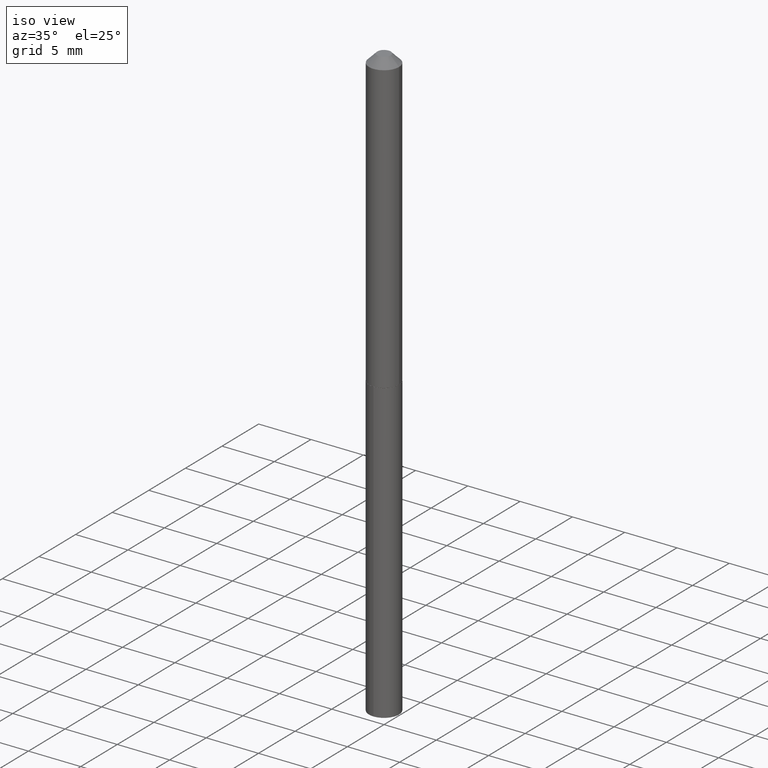
[diagram: clean part render]
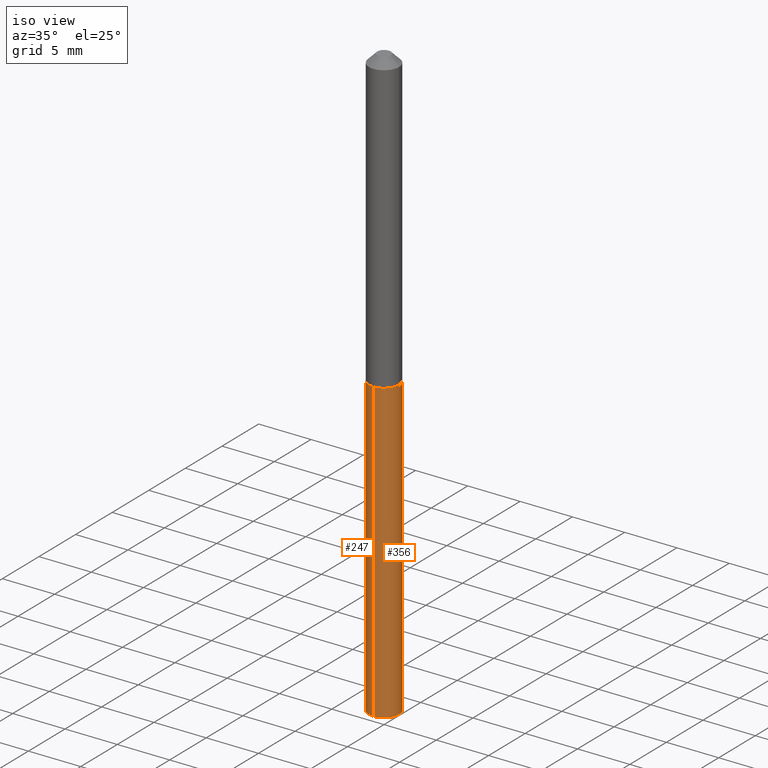
[diagram: same view with one multi-face feature highlighted, each face labeled with its STEP entity id]
A machine part, iso view. The highlighted faces form ONE feature: a constant-radius fillet chain: 2 tangent blend faces with common blend radius 1.4351 mm. The faces share edges in the B-rep.
Their STEP definitions:
[1] entity #247 (Cylinder):
#5 = DIRECTION ( 'NONE',  ( -2.446326922629203829E-29, 3.490252467254286211E-15, 1.000000000000000000 ) ) ;
#22 = ORIENTED_EDGE ( 'NONE', *, *, #91, .T. ) ;
#29 = CARTESIAN_POINT ( 'NONE',  ( 4.014566457045113930E-16, 0.05649999999999611583, -1.112999999999999767 ) ) ;
#38 = CARTESIAN_POINT ( 'NONE',  ( -3.945373912892193774E-16, -0.05650000000000780093, -2.234860870627641383 ) ) ;
#45 = CIRCLE ( 'NONE', #323, 0.05650000000000000161 ) ;
#71 = DIRECTION ( 'NONE',  ( -6.982962677686265922E-15, -1.000000000000000000, 4.835129192326129423E-15 ) ) ;
#81 = AXIS2_PLACEMENT_3D ( 'NONE', #200, #295, #288 ) ;
#91 = EDGE_CURVE ( 'NONE', #333, #103, #45, .T. ) ;
#96 = EDGE_CURVE ( 'NONE', #379, #163, #350, .T. ) ;
#103 = VERTEX_POINT ( 'NONE', #38 ) ;
#107 = ORIENTED_EDGE ( 'NONE', *, *, #96, .F. ) ;
#109 = CYLINDRICAL_SURFACE ( 'NONE', #81, 0.05650000000000000161 ) ;
#110 = ORIENTED_EDGE ( 'NONE', *, *, #361, .F. ) ;
#147 = LINE ( 'NONE', #204, #328 ) ;
#148 = VECTOR ( 'NONE', #5, 39.37007874015748143 ) ;
#152 = CARTESIAN_POINT ( 'NONE',  ( 5.466245232544695378E-29, -7.801596401756588387E-15, -2.234860870627641383 ) ) ;
#155 = EDGE_CURVE ( 'NONE', #103, #163, #312, .T. ) ;
#163 = VERTEX_POINT ( 'NONE', #184 ) ;
#184 = CARTESIAN_POINT ( 'NONE',  ( -3.945373912892467903E-16, -0.05650000000000388045, -1.112999999999999545 ) ) ;
#197 = CARTESIAN_POINT ( 'NONE',  ( 4.014566457045111958E-16, 0.05649999999999219535, -2.234860870627641827 ) ) ;
#200 = CARTESIAN_POINT ( 'NONE',  ( 2.721806781284056481E-29, -3.886018730132419983E-15, -1.112999999999999767 ) ) ;
#204 = CARTESIAN_POINT ( 'NONE',  ( 4.014566457044837829E-16, 0.05649999999999611583, -1.112999999999999767 ) ) ;
#210 = AXIS2_PLACEMENT_3D ( 'NONE', #221, #284, #368 ) ;
#221 = CARTESIAN_POINT ( 'NONE',  ( 2.721806781284056481E-29, -3.886018730132419983E-15, -1.112999999999999767 ) ) ;
#247 = ADVANCED_FACE ( 'NONE', ( #376 ), #109, .T. ) ;
#284 = DIRECTION ( 'NONE',  ( -2.446326922629204109E-29, 3.490252467254285817E-15, 1.000000000000000000 ) ) ;
#285 = ORIENTED_EDGE ( 'NONE', *, *, #155, .T. ) ;
#288 = DIRECTION ( 'NONE',  ( -6.982962677686265922E-15, -1.000000000000000000, 2.417564596163064711E-15 ) ) ;
#295 = DIRECTION ( 'NONE',  ( -2.446326922629204109E-29, 3.490252467254285817E-15, 1.000000000000000000 ) ) ;
#310 = DIRECTION ( 'NONE',  ( -2.446326922629204109E-29, 3.490252467254285817E-15, 1.000000000000000000 ) ) ;
#312 = LINE ( 'NONE', #334, #148 ) ;
#323 = AXIS2_PLACEMENT_3D ( 'NONE', #152, #310, #71 ) ;
#328 = VECTOR ( 'NONE', #360, 39.37007874015748143 ) ;
#333 = VERTEX_POINT ( 'NONE', #197 ) ;
#334 = CARTESIAN_POINT ( 'NONE',  ( -3.945373912892467903E-16, -0.05650000000000388045, -1.112999999999999545 ) ) ;
#350 = CIRCLE ( 'NONE', #210, 0.05650000000000000161 ) ;
#360 = DIRECTION ( 'NONE',  ( -2.446326922629203829E-29, 3.490252467254286211E-15, 1.000000000000000000 ) ) ;
#361 = EDGE_CURVE ( 'NONE', #333, #379, #147, .T. ) ;
#368 = DIRECTION ( 'NONE',  ( -6.982962677686265922E-15, -1.000000000000000000, 2.417564596163064711E-15 ) ) ;
#376 = FACE_OUTER_BOUND ( 'NONE', #387, .T. ) ;
#379 = VERTEX_POINT ( 'NONE', #29 ) ;
#387 = EDGE_LOOP ( 'NONE', ( #110, #22, #285, #107 ) ) ;
[2] entity #356 (Cylinder):
#5 = DIRECTION ( 'NONE',  ( -2.446326922629203829E-29, 3.490252467254286211E-15, 1.000000000000000000 ) ) ;
#24 = DIRECTION ( 'NONE',  ( -6.982962677686265922E-15, -1.000000000000000000, 4.835129192326129423E-15 ) ) ;
#29 = CARTESIAN_POINT ( 'NONE',  ( 4.014566457045113930E-16, 0.05649999999999611583, -1.112999999999999767 ) ) ;
#37 = ORIENTED_EDGE ( 'NONE', *, *, #361, .T. ) ;
#38 = CARTESIAN_POINT ( 'NONE',  ( -3.945373912892193774E-16, -0.05650000000000780093, -2.234860870627641383 ) ) ;
#58 = EDGE_CURVE ( 'NONE', #163, #379, #117, .T. ) ;
#79 = DIRECTION ( 'NONE',  ( -2.446326922629204109E-29, 3.490252467254285817E-15, 1.000000000000000000 ) ) ;
#82 = ORIENTED_EDGE ( 'NONE', *, *, #254, .T. ) ;
#94 = DIRECTION ( 'NONE',  ( -6.982962677686265922E-15, -1.000000000000000000, 2.417564596163064711E-15 ) ) ;
#103 = VERTEX_POINT ( 'NONE', #38 ) ;
#117 = CIRCLE ( 'NONE', #215, 0.05650000000000000161 ) ;
#147 = LINE ( 'NONE', #204, #328 ) ;
#148 = VECTOR ( 'NONE', #5, 39.37007874015748143 ) ;
#155 = EDGE_CURVE ( 'NONE', #103, #163, #312, .T. ) ;
#163 = VERTEX_POINT ( 'NONE', #184 ) ;
#176 = FACE_OUTER_BOUND ( 'NONE', #291, .T. ) ;
#177 = CYLINDRICAL_SURFACE ( 'NONE', #351, 0.05650000000000000161 ) ;
#184 = CARTESIAN_POINT ( 'NONE',  ( -3.945373912892467903E-16, -0.05650000000000388045, -1.112999999999999545 ) ) ;
#197 = CARTESIAN_POINT ( 'NONE',  ( 4.014566457045111958E-16, 0.05649999999999219535, -2.234860870627641827 ) ) ;
#202 = ORIENTED_EDGE ( 'NONE', *, *, #155, .F. ) ;
#204 = CARTESIAN_POINT ( 'NONE',  ( 4.014566457044837829E-16, 0.05649999999999611583, -1.112999999999999767 ) ) ;
#209 = DIRECTION ( 'NONE',  ( -6.982962677686265922E-15, -1.000000000000000000, 2.417564596163064711E-15 ) ) ;
#215 = AXIS2_PLACEMENT_3D ( 'NONE', #244, #276, #94 ) ;
#222 = ORIENTED_EDGE ( 'NONE', *, *, #58, .F. ) ;
#244 = CARTESIAN_POINT ( 'NONE',  ( 2.721806781284056481E-29, -3.886018730132419983E-15, -1.112999999999999767 ) ) ;
#254 = EDGE_CURVE ( 'NONE', #103, #333, #316, .T. ) ;
#276 = DIRECTION ( 'NONE',  ( -2.446326922629204109E-29, 3.490252467254285817E-15, 1.000000000000000000 ) ) ;
#286 = CARTESIAN_POINT ( 'NONE',  ( 5.466245232544695378E-29, -7.801596401756588387E-15, -2.234860870627641383 ) ) ;
#291 = EDGE_LOOP ( 'NONE', ( #82, #37, #222, #202 ) ) ;
#300 = CARTESIAN_POINT ( 'NONE',  ( 2.721806781284056481E-29, -3.886018730132419983E-15, -1.112999999999999767 ) ) ;
#312 = LINE ( 'NONE', #334, #148 ) ;
#316 = CIRCLE ( 'NONE', #344, 0.05650000000000000161 ) ;
#328 = VECTOR ( 'NONE', #360, 39.37007874015748143 ) ;
#333 = VERTEX_POINT ( 'NONE', #197 ) ;
#334 = CARTESIAN_POINT ( 'NONE',  ( -3.945373912892467903E-16, -0.05650000000000388045, -1.112999999999999545 ) ) ;
#344 = AXIS2_PLACEMENT_3D ( 'NONE', #286, #79, #24 ) ;
#351 = AXIS2_PLACEMENT_3D ( 'NONE', #300, #357, #209 ) ;
#356 = ADVANCED_FACE ( 'NONE', ( #176 ), #177, .T. ) ;
#357 = DIRECTION ( 'NONE',  ( -2.446326922629204109E-29, 3.490252467254285817E-15, 1.000000000000000000 ) ) ;
#360 = DIRECTION ( 'NONE',  ( -2.446326922629203829E-29, 3.490252467254286211E-15, 1.000000000000000000 ) ) ;
#361 = EDGE_CURVE ( 'NONE', #333, #379, #147, .T. ) ;
#379 = VERTEX_POINT ( 'NONE', #29 ) ;